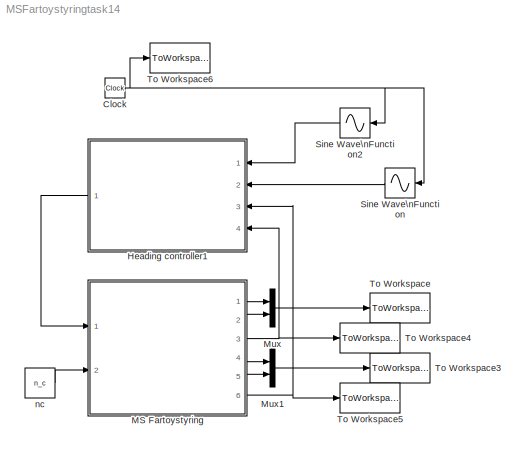
MODEL MSFartoystyringtask14
KIND model
BLOCK [Clock] Clock
  SID = 1
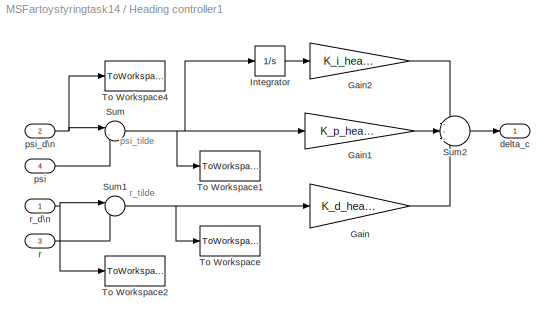
BLOCK [SubSystem] Heading controller1
  Ports = [4, 1]
  RequestExecContextInheritance = off
  SID = 61
BLOCK [Gain] Heading controller1/Gain
  Gain = K_d_heading
  OutDataTypeStr = Inherit: Inherit via internal rule
  ParamDataTypeStr = Inherit: Inherit via internal rule
  SID = 66
  SaturateOnIntegerOverflow = off
BLOCK [Gain] Heading controller1/Gain1
  Gain = K_p_heading
  OutDataTypeStr = Inherit: Inherit via internal rule
  ParamDataTypeStr = Inherit: Inherit via internal rule
  SID = 67
  SaturateOnIntegerOverflow = off
BLOCK [Gain] Heading controller1/Gain2
  Gain = K_i_heading
  OutDataTypeStr = Inherit: Inherit via internal rule
  ParamDataTypeStr = Inherit: Inherit via internal rule
  SID = 68
  SaturateOnIntegerOverflow = off
BLOCK [Integrator] Heading controller1/Integrator
  Ports = [1, 1]
  SID = 69
BLOCK [Sum] Heading controller1/Sum
  IconShape = round
  InputSameDT = off
  Inputs = |-+
  OutDataTypeStr = Inherit: Inherit via internal rule
  Ports = [2, 1]
  SID = 70
  SaturateOnIntegerOverflow = off
BLOCK [Sum] Heading controller1/Sum1
  IconShape = round
  InputSameDT = off
  Inputs = |-+
  OutDataTypeStr = Inherit: Inherit via internal rule
  Ports = [2, 1]
  SID = 71
  SaturateOnIntegerOverflow = off
BLOCK [Sum] Heading controller1/Sum2
  IconShape = round
  InputSameDT = off
  Inputs = ---
  OutDataTypeStr = Inherit: Inherit via internal rule
  Ports = [3, 1]
  SID = 72
  SaturateOnIntegerOverflow = off
BLOCK [ToWorkspace] Heading controller1/To Workspace
  FixptAsFi = on
  MaxDataPoints = inf
  Ports = [1]
  SID = 73
  SampleTime = tsamp
  VariableName = r_tilde
BLOCK [ToWorkspace] Heading controller1/To Workspace1
  FixptAsFi = on
  MaxDataPoints = inf
  Ports = [1]
  SID = 74
  SampleTime = tsamp
  VariableName = psi_tilde
BLOCK [ToWorkspace] Heading controller1/To Workspace2
  FixptAsFi = on
  MaxDataPoints = inf
  Ports = [1]
  SID = 75
  SampleTime = tsamp
  VariableName = r_d
BLOCK [ToWorkspace] Heading controller1/To Workspace4
  FixptAsFi = on
  MaxDataPoints = inf
  Ports = [1]
  SID = 76
  SampleTime = tsamp
  VariableName = psi_d
BLOCK [Outport] Heading controller1/delta_c
  IconDisplay = Port number
  SID = 77
BLOCK [Inport] Heading controller1/psi
  IconDisplay = Port number
  Port = 4
  SID = 65
BLOCK [Inport] Heading controller1/psi_d\n
  IconDisplay = Port number
  Port = 2
  SID = 63
BLOCK [Inport] Heading controller1/r
  IconDisplay = Port number
  Port = 3
  SID = 64
BLOCK [Inport] Heading controller1/r_d\n
  IconDisplay = Port number
  SID = 62
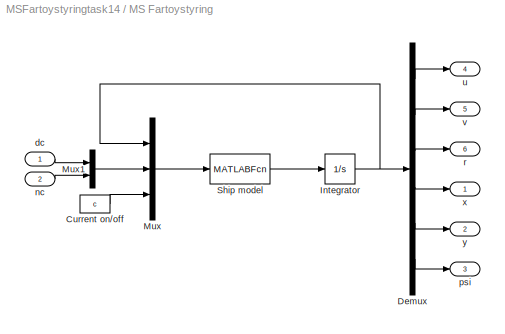
BLOCK [SubSystem] MS Fartoystyring
  Ports = [2, 6]
  RequestExecContextInheritance = off
  SID = 2
BLOCK [Constant] MS Fartoystyring/Current on//off
  SID = 5
  Value = c
BLOCK [Demux] MS Fartoystyring/Demux
  DisplayOption = bar
  Outputs = 6
  Ports = [1, 6]
  SID = 6
BLOCK [Integrator] MS Fartoystyring/Integrator
  InitialCondition = [u0 v0 r0 x0 y0 psi0]'
  Ports = [1, 1]
  SID = 7
BLOCK [Mux] MS Fartoystyring/Mux
  DisplayOption = bar
  Inputs = 3
  Ports = [3, 1]
  SID = 8
BLOCK [Mux] MS Fartoystyring/Mux1
  DisplayOption = bar
  Inputs = 2
  Ports = [2, 1]
  SID = 9
BLOCK [MATLABFcn] MS Fartoystyring/Ship model
  MATLABFcn = msfartoystyring(u(1:6), u(7:8), u(9))
  OutputDimensions = 6
  Ports = [1, 1]
  SID = 10
BLOCK [Inport] MS Fartoystyring/dc
  IconDisplay = Port number
  SID = 3
BLOCK [Inport] MS Fartoystyring/nc
  IconDisplay = Port number
  Port = 2
  SID = 4
BLOCK [Outport] MS Fartoystyring/psi
  IconDisplay = Port number
  Port = 3
  SID = 13
BLOCK [Outport] MS Fartoystyring/r
  IconDisplay = Port number
  Port = 6
  SID = 16
BLOCK [Outport] MS Fartoystyring/u
  IconDisplay = Port number
  Port = 4
  SID = 14
BLOCK [Outport] MS Fartoystyring/v
  IconDisplay = Port number
  Port = 5
  SID = 15
BLOCK [Outport] MS Fartoystyring/x
  IconDisplay = Port number
  SID = 11
BLOCK [Outport] MS Fartoystyring/y
  IconDisplay = Port number
  Port = 2
  SID = 12
BLOCK [Mux] Mux
  DisplayOption = bar
  Inputs = 2
  Ports = [2, 1]
  SID = 17
BLOCK [Mux] Mux1
  DisplayOption = bar
  Inputs = 2
  Ports = [2, 1]
  SID = 18
BLOCK [Sin] Sine Wave\nFunction
  Amplitude = -amp
  Frequency = omega_d
  Ports = [1, 1]
  SID = 53
  SampleTime = 0
  TimeSource = Use external signal
BLOCK [Sin] Sine Wave\nFunction2
  Amplitude = -amp*omega_d
  Frequency = omega_d
  Phase = pi/2
  Ports = [1, 1]
  SID = 60
  SampleTime = 0
  TimeSource = Use external signal
BLOCK [ToWorkspace] To Workspace
  MaxDataPoints = inf
  Ports = [1]
  SID = 19
  SampleTime = tsamp
  VariableName = p
BLOCK [ToWorkspace] To Workspace3
  MaxDataPoints = inf
  Ports = [1]
  SID = 20
  SampleTime = tsamp
  VariableName = v
BLOCK [ToWorkspace] To Workspace4
  MaxDataPoints = inf
  Ports = [1]
  SID = 21
  SampleTime = tsamp
  VariableName = psi
BLOCK [ToWorkspace] To Workspace5
  MaxDataPoints = inf
  Ports = [1]
  SID = 22
  SampleTime = tsamp
  VariableName = r
BLOCK [ToWorkspace] To Workspace6
  MaxDataPoints = inf
  Ports = [1]
  SID = 23
  SampleTime = tsamp
  VariableName = t
BLOCK [Constant] nc
  SID = 25
  Value = n_c
ANNOTATION Heading controller1: psi_tilde\n
ANNOTATION Heading controller1: r_tilde\n
NET Clock:1 -> Sine Wave\nFunction2:1, Sine Wave\nFunction:1, To Workspace6:1
LINE Heading controller1/Gain1:1 -> Heading controller1/Sum2:2
LINE Heading controller1/Gain2:1 -> Heading controller1/Sum2:1
LINE Heading controller1/Gain:1 -> Heading controller1/Sum2:3
LINE Heading controller1/Integrator:1 -> Heading controller1/Gain2:1
NET Heading controller1/Sum1:1 -> Heading controller1/Gain:1, Heading controller1/To Workspace:1
LINE Heading controller1/Sum2:1 -> Heading controller1/delta_c:1
NET Heading controller1/Sum:1 -> Heading controller1/Gain1:1, Heading controller1/Integrator:1, Heading controller1/To Workspace1:1
LINE Heading controller1/psi:1 -> Heading controller1/Sum:2
NET Heading controller1/psi_d\n:1 -> Heading controller1/Sum:1, Heading controller1/To Workspace4:1
LINE Heading controller1/r:1 -> Heading controller1/Sum1:2
NET Heading controller1/r_d\n:1 -> Heading controller1/Sum1:1, Heading controller1/To Workspace2:1
LINE Heading controller1:1 -> MS Fartoystyring:1
LINE MS Fartoystyring/Current on//off:1 -> MS Fartoystyring/Mux:3
LINE MS Fartoystyring/Demux:1 -> MS Fartoystyring/u:1
LINE MS Fartoystyring/Demux:2 -> MS Fartoystyring/v:1
LINE MS Fartoystyring/Demux:3 -> MS Fartoystyring/r:1
LINE MS Fartoystyring/Demux:4 -> MS Fartoystyring/x:1
LINE MS Fartoystyring/Demux:5 -> MS Fartoystyring/y:1
LINE MS Fartoystyring/Demux:6 -> MS Fartoystyring/psi:1
NET MS Fartoystyring/Integrator:1 -> MS Fartoystyring/Demux:1, MS Fartoystyring/Mux:1
LINE MS Fartoystyring/Mux1:1 -> MS Fartoystyring/Mux:2
LINE MS Fartoystyring/Mux:1 -> MS Fartoystyring/Ship model:1
LINE MS Fartoystyring/Ship model:1 -> MS Fartoystyring/Integrator:1
LINE MS Fartoystyring/dc:1 -> MS Fartoystyring/Mux1:1
LINE MS Fartoystyring/nc:1 -> MS Fartoystyring/Mux1:2
LINE MS Fartoystyring:1 -> Mux:1
LINE MS Fartoystyring:2 -> Mux:2
NET MS Fartoystyring:3 -> Heading controller1:4, To Workspace4:1
LINE MS Fartoystyring:4 -> Mux1:1
LINE MS Fartoystyring:5 -> Mux1:2
NET MS Fartoystyring:6 -> Heading controller1:3, To Workspace5:1
LINE Mux1:1 -> To Workspace3:1
LINE Mux:1 -> To Workspace:1
LINE Sine Wave\nFunction2:1 -> Heading controller1:1
LINE Sine Wave\nFunction:1 -> Heading controller1:2
LINE nc:1 -> MS Fartoystyring:2
note: NET lines group one-source signal fan-out (src -> all destinations, sorted); 1:1 wires keep LINE
